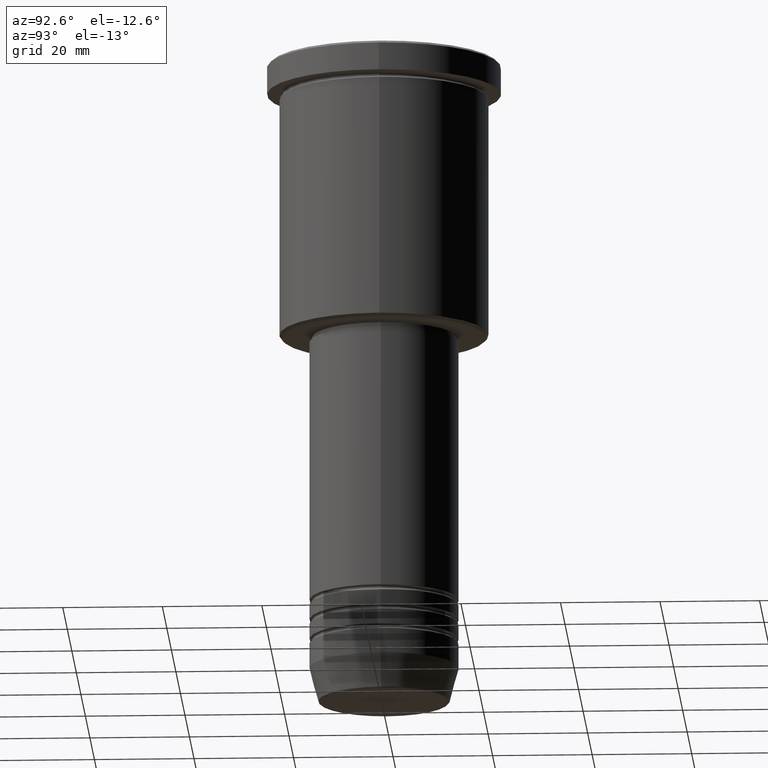
[diagram: clean part render]
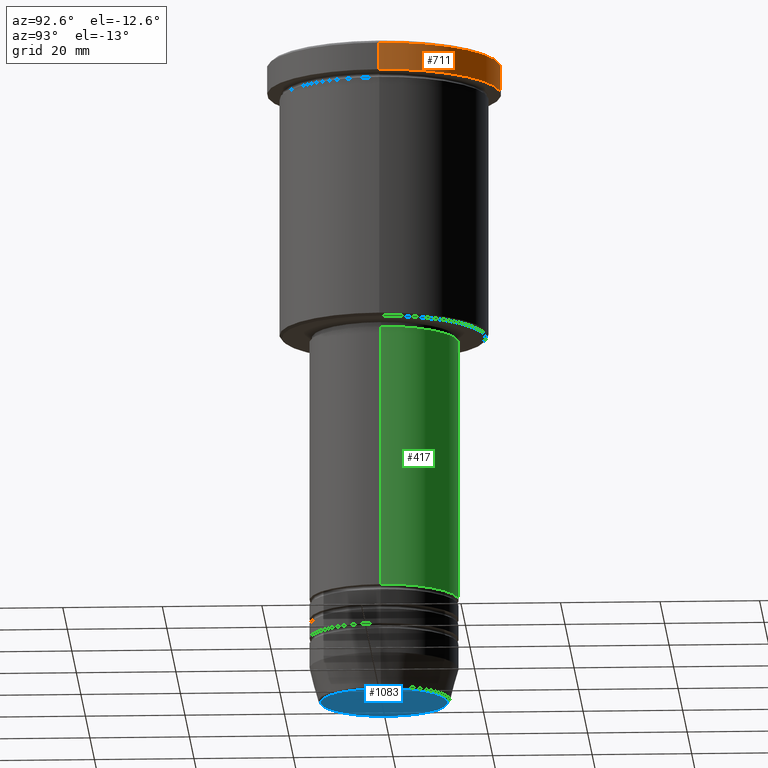
[diagram: same view with three faces highlighted in distinct colors, each labeled with its STEP entity id]
A machine part, auxiliary view with three faces highlighted in distinct colors.
Their STEP definitions:

[orange] entity #711 — the highlighted cylindrical surface (partial cylindrical patch) has radius 23.5 mm, axis along (-0, -0, 1).
#149 = CARTESIAN_POINT ( 'NONE',  ( -23.50000000000000000, 2.877919977996280320E-15, -5.999999999999993783 ) ) ;
#155 = CARTESIAN_POINT ( 'NONE',  ( 0.000000000000000000, 0.000000000000000000, -5.999999999999993783 ) ) ;
#215 = CARTESIAN_POINT ( 'NONE',  ( 0.000000000000000000, 0.000000000000000000, 0.000000000000000000 ) ) ;
#277 = EDGE_CURVE ( 'NONE', #380, #899, #355, .T. ) ;
#282 = DIRECTION ( 'NONE',  ( -0.000000000000000000, -0.000000000000000000, 1.000000000000000000 ) ) ;
#291 = DIRECTION ( 'NONE',  ( 1.000000000000000000, 0.000000000000000000, 0.000000000000000000 ) ) ;
#292 = ORIENTED_EDGE ( 'NONE', *, *, #277, .T. ) ;
#295 = ORIENTED_EDGE ( 'NONE', *, *, #659, .T. ) ;
#302 = AXIS2_PLACEMENT_3D ( 'NONE', #215, #282, #291 ) ;
#321 = EDGE_CURVE ( 'NONE', #380, #833, #897, .T. ) ;
#355 = CIRCLE ( 'NONE', #1157, 23.50000000000000000 ) ;
#380 = VERTEX_POINT ( 'NONE', #630 ) ;
#424 = ORIENTED_EDGE ( 'NONE', *, *, #321, .F. ) ;
#441 = CARTESIAN_POINT ( 'NONE',  ( 23.50000000000000000, 0.000000000000000000, 0.000000000000000000 ) ) ;
#456 = CARTESIAN_POINT ( 'NONE',  ( -23.50000000000000000, 2.877919977996280320E-15, -0.5000000000000143219 ) ) ;
#486 = DIRECTION ( 'NONE',  ( -0.000000000000000000, -0.000000000000000000, 1.000000000000000000 ) ) ;
#506 = CARTESIAN_POINT ( 'NONE',  ( 0.000000000000000000, 0.000000000000000000, -0.5000000000000143219 ) ) ;
#516 = EDGE_LOOP ( 'NONE', ( #292, #295, #780, #424 ) ) ;
#630 = CARTESIAN_POINT ( 'NONE',  ( 23.50000000000000000, 0.000000000000000000, -5.999999999999993783 ) ) ;
#639 = VECTOR ( 'NONE', #1065, 1000.000000000000000 ) ;
#659 = EDGE_CURVE ( 'NONE', #899, #1076, #706, .T. ) ;
#693 = DIRECTION ( 'NONE',  ( 1.000000000000000000, 0.000000000000000000, 0.000000000000000000 ) ) ;
#700 = AXIS2_PLACEMENT_3D ( 'NONE', #506, #1135, #693 ) ;
#706 = LINE ( 'NONE', #1074, #733 ) ;
#711 = ADVANCED_FACE ( 'NONE', ( #925 ), #1003, .T. ) ;
#733 = VECTOR ( 'NONE', #786, 1000.000000000000000 ) ;
#780 = ORIENTED_EDGE ( 'NONE', *, *, #855, .T. ) ;
#786 = DIRECTION ( 'NONE',  ( -0.000000000000000000, -0.000000000000000000, 1.000000000000000000 ) ) ;
#833 = VERTEX_POINT ( 'NONE', #1056 ) ;
#855 = EDGE_CURVE ( 'NONE', #1076, #833, #964, .T. ) ;
#897 = LINE ( 'NONE', #441, #639 ) ;
#899 = VERTEX_POINT ( 'NONE', #149 ) ;
#925 = FACE_OUTER_BOUND ( 'NONE', #516, .T. ) ;
#964 = CIRCLE ( 'NONE', #700, 23.50000000000000000 ) ;
#1003 = CYLINDRICAL_SURFACE ( 'NONE', #302, 23.50000000000000000 ) ;
#1056 = CARTESIAN_POINT ( 'NONE',  ( 23.50000000000000000, 0.000000000000000000, -0.5000000000000143219 ) ) ;
#1065 = DIRECTION ( 'NONE',  ( -0.000000000000000000, -0.000000000000000000, 1.000000000000000000 ) ) ;
#1074 = CARTESIAN_POINT ( 'NONE',  ( -23.50000000000000000, 2.877919977996280320E-15, 0.000000000000000000 ) ) ;
#1076 = VERTEX_POINT ( 'NONE', #456 ) ;
#1135 = DIRECTION ( 'NONE',  ( 0.000000000000000000, 0.000000000000000000, -1.000000000000000000 ) ) ;
#1138 = DIRECTION ( 'NONE',  ( 1.000000000000000000, 0.000000000000000000, 0.000000000000000000 ) ) ;
#1157 = AXIS2_PLACEMENT_3D ( 'NONE', #155, #486, #1138 ) ;

[blue] entity #1083 — the highlighted planar face has unit normal (0, -0, 1).
#2 = VERTEX_POINT ( 'NONE', #1129 ) ;
#39 = VERTEX_POINT ( 'NONE', #576 ) ;
#44 = DIRECTION ( 'NONE',  ( 0.000000000000000000, 0.000000000000000000, -1.000000000000000000 ) ) ;
#128 = EDGE_CURVE ( 'NONE', #2, #39, #164, .T. ) ;
#164 = CIRCLE ( 'NONE', #886, 12.74069215899265473 ) ;
#171 = DIRECTION ( 'NONE',  ( 0.000000000000000000, -0.000000000000000000, 1.000000000000000000 ) ) ;
#203 = ORIENTED_EDGE ( 'NONE', *, *, #128, .T. ) ;
#293 = CARTESIAN_POINT ( 'NONE',  ( 0.000000000000000000, 0.000000000000000000, -131.0000000000000000 ) ) ;
#372 = FACE_OUTER_BOUND ( 'NONE', #741, .T. ) ;
#430 = EDGE_CURVE ( 'NONE', #39, #2, #521, .T. ) ;
#521 = CIRCLE ( 'NONE', #1122, 12.74069215899265473 ) ;
#547 = ORIENTED_EDGE ( 'NONE', *, *, #430, .T. ) ;
#576 = CARTESIAN_POINT ( 'NONE',  ( -12.74069215899265473, 1.589857736427680640E-15, -131.0000000000000000 ) ) ;
#648 = DIRECTION ( 'NONE',  ( 1.000000000000000000, 0.000000000000000000, 0.000000000000000000 ) ) ;
#652 = DIRECTION ( 'NONE',  ( 1.000000000000000000, 0.000000000000000000, 0.000000000000000000 ) ) ;
#719 = PLANE ( 'NONE',  #832 ) ;
#741 = EDGE_LOOP ( 'NONE', ( #203, #547 ) ) ;
#832 = AXIS2_PLACEMENT_3D ( 'NONE', #293, #171, #648 ) ;
#867 = CARTESIAN_POINT ( 'NONE',  ( 0.000000000000000000, 0.000000000000000000, -131.0000000000000000 ) ) ;
#886 = AXIS2_PLACEMENT_3D ( 'NONE', #1119, #1115, #652 ) ;
#961 = DIRECTION ( 'NONE',  ( 1.000000000000000000, 0.000000000000000000, 0.000000000000000000 ) ) ;
#1083 = ADVANCED_FACE ( 'NONE', ( #372 ), #719, .F. ) ;
#1115 = DIRECTION ( 'NONE',  ( 0.000000000000000000, 0.000000000000000000, -1.000000000000000000 ) ) ;
#1119 = CARTESIAN_POINT ( 'NONE',  ( 0.000000000000000000, 0.000000000000000000, -131.0000000000000000 ) ) ;
#1122 = AXIS2_PLACEMENT_3D ( 'NONE', #867, #44, #961 ) ;
#1129 = CARTESIAN_POINT ( 'NONE',  ( 12.74069215899265473, 0.000000000000000000, -131.0000000000000000 ) ) ;

[green] entity #417 — the highlighted cylindrical surface (partial cylindrical patch) has radius 15 mm, axis along (-0, -0, 1).
#10 = AXIS2_PLACEMENT_3D ( 'NONE', #1140, #219, #1045 ) ;
#29 = EDGE_CURVE ( 'NONE', #77, #1073, #519, .T. ) ;
#38 = DIRECTION ( 'NONE',  ( 1.000000000000000000, 0.000000000000000000, 0.000000000000000000 ) ) ;
#49 = AXIS2_PLACEMENT_3D ( 'NONE', #1136, #587, #38 ) ;
#59 = CYLINDRICAL_SURFACE ( 'NONE', #49, 15.00000000000000000 ) ;
#77 = VERTEX_POINT ( 'NONE', #554 ) ;
#219 = DIRECTION ( 'NONE',  ( -0.000000000000000000, -0.000000000000000000, 1.000000000000000000 ) ) ;
#246 = CARTESIAN_POINT ( 'NONE',  ( 0.000000000000000000, 0.000000000000000000, -109.9999999999998863 ) ) ;
#329 = FACE_OUTER_BOUND ( 'NONE', #690, .T. ) ;
#359 = CIRCLE ( 'NONE', #926, 15.00000000000000000 ) ;
#379 = CARTESIAN_POINT ( 'NONE',  ( -15.00000000000000000, 1.836970198721029589E-15, -56.99999999999998579 ) ) ;
#417 = ADVANCED_FACE ( 'NONE', ( #329 ), #59, .T. ) ;
#418 = LINE ( 'NONE', #1151, #678 ) ;
#452 = CARTESIAN_POINT ( 'NONE',  ( 15.00000000000000000, 0.000000000000000000, -109.9999999999998863 ) ) ;
#483 = CARTESIAN_POINT ( 'NONE',  ( -15.00000000000000000, 1.836970198721029589E-15, -109.9999999999998863 ) ) ;
#519 = CIRCLE ( 'NONE', #10, 15.00000000000000000 ) ;
#530 = LINE ( 'NONE', #898, #714 ) ;
#554 = CARTESIAN_POINT ( 'NONE',  ( 15.00000000000000000, 0.000000000000000000, -56.99999999999998579 ) ) ;
#587 = DIRECTION ( 'NONE',  ( -0.000000000000000000, -0.000000000000000000, 1.000000000000000000 ) ) ;
#678 = VECTOR ( 'NONE', #1088, 1000.000000000000000 ) ;
#690 = EDGE_LOOP ( 'NONE', ( #919, #836, #912, #755 ) ) ;
#714 = VECTOR ( 'NONE', #1006, 1000.000000000000000 ) ;
#726 = VERTEX_POINT ( 'NONE', #452 ) ;
#755 = ORIENTED_EDGE ( 'NONE', *, *, #1109, .F. ) ;
#836 = ORIENTED_EDGE ( 'NONE', *, *, #975, .T. ) ;
#861 = DIRECTION ( 'NONE',  ( -0.000000000000000000, -0.000000000000000000, 1.000000000000000000 ) ) ;
#862 = EDGE_CURVE ( 'NONE', #726, #950, #359, .T. ) ;
#898 = CARTESIAN_POINT ( 'NONE',  ( 15.00000000000000000, 0.000000000000000000, 0.000000000000000000 ) ) ;
#912 = ORIENTED_EDGE ( 'NONE', *, *, #29, .F. ) ;
#919 = ORIENTED_EDGE ( 'NONE', *, *, #862, .T. ) ;
#926 = AXIS2_PLACEMENT_3D ( 'NONE', #246, #861, #944 ) ;
#944 = DIRECTION ( 'NONE',  ( 1.000000000000000000, 0.000000000000000000, 0.000000000000000000 ) ) ;
#950 = VERTEX_POINT ( 'NONE', #483 ) ;
#975 = EDGE_CURVE ( 'NONE', #950, #1073, #418, .T. ) ;
#1006 = DIRECTION ( 'NONE',  ( -0.000000000000000000, -0.000000000000000000, 1.000000000000000000 ) ) ;
#1045 = DIRECTION ( 'NONE',  ( 1.000000000000000000, 0.000000000000000000, 0.000000000000000000 ) ) ;
#1073 = VERTEX_POINT ( 'NONE', #379 ) ;
#1088 = DIRECTION ( 'NONE',  ( -0.000000000000000000, -0.000000000000000000, 1.000000000000000000 ) ) ;
#1109 = EDGE_CURVE ( 'NONE', #726, #77, #530, .T. ) ;
#1136 = CARTESIAN_POINT ( 'NONE',  ( 0.000000000000000000, 0.000000000000000000, 0.000000000000000000 ) ) ;
#1140 = CARTESIAN_POINT ( 'NONE',  ( 0.000000000000000000, 0.000000000000000000, -56.99999999999998579 ) ) ;
#1151 = CARTESIAN_POINT ( 'NONE',  ( -15.00000000000000000, 1.836970198721029589E-15, 0.000000000000000000 ) ) ;